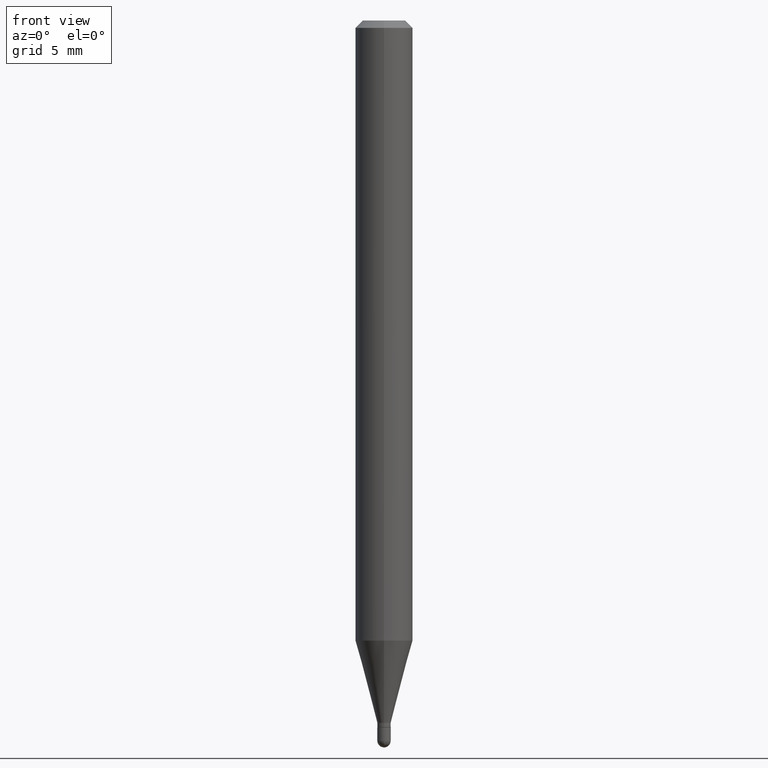
[diagram: clean part render]
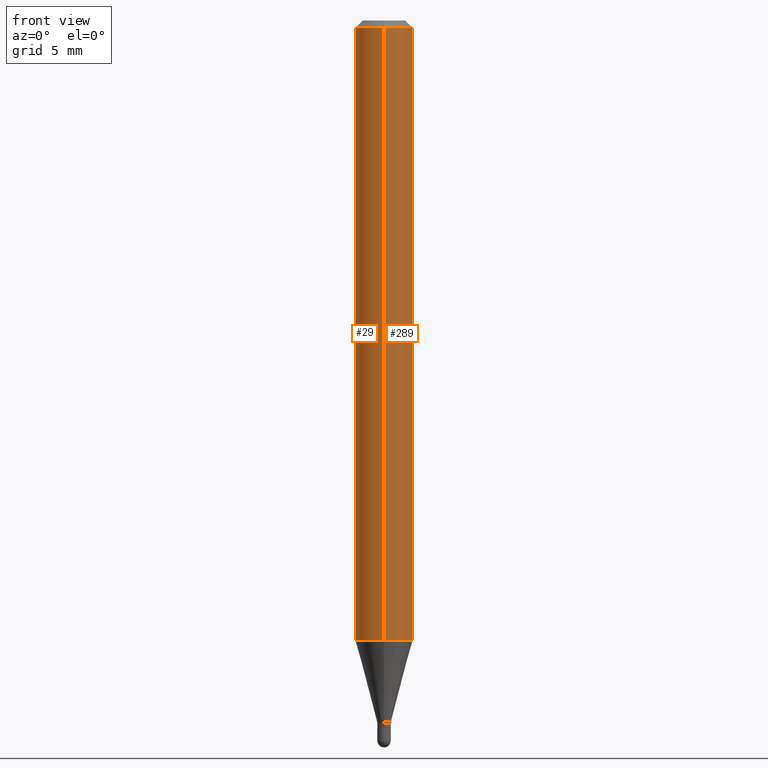
[diagram: same view with one multi-face feature highlighted, each face labeled with its STEP entity id]
A machine part, front view. The highlighted faces form ONE feature: a constant-radius fillet chain: 2 tangent blend faces with common blend radius 1.4999 mm. The faces share edges in the B-rep.
Their STEP definitions:
[1] entity #289 (Cylinder):
#12 = CYLINDRICAL_SURFACE ( 'NONE', #282, 0.05904999999999999832 ) ;
#40 = AXIS2_PLACEMENT_3D ( 'NONE', #390, #225, #226 ) ;
#51 = DIRECTION ( 'NONE',  ( -2.445422202875733242E-29, 3.491548077434707223E-15, 1.000000000000000000 ) ) ;
#62 = DIRECTION ( 'NONE',  ( -6.982962677686265922E-15, -1.000000000000000000, 3.491548077434707617E-15 ) ) ;
#67 = ORIENTED_EDGE ( 'NONE', *, *, #500, .T. ) ;
#131 = CARTESIAN_POINT ( 'NONE',  ( 4.195754854663705051E-16, 0.05904999999999994975, -0.01500000000000023016 ) ) ;
#135 = CARTESIAN_POINT ( 'NONE',  ( 0.000000000000000000, 0.000000000000000000, 0.000000000000000000 ) ) ;
#151 = DIRECTION ( 'NONE',  ( -6.982962677686265922E-15, -1.000000000000000000, 3.505890868245046092E-15 ) ) ;
#172 = VECTOR ( 'NONE', #379, 39.37007874015748143 ) ;
#207 = CARTESIAN_POINT ( 'NONE',  ( -4.123439461173428234E-16, -0.05905000000000445309, -1.276224700957508285 ) ) ;
#225 = DIRECTION ( 'NONE',  ( -2.445422202875732962E-29, 3.491548077434707223E-15, 1.000000000000000000 ) ) ;
#226 = DIRECTION ( 'NONE',  ( -6.982962677686265922E-15, -1.000000000000000000, 4.626330217890369336E-15 ) ) ;
#238 = CIRCLE ( 'NONE', #347, 0.05904999999999999832 ) ;
#254 = LINE ( 'NONE', #491, #336 ) ;
#257 = CIRCLE ( 'NONE', #40, 0.05904999999999999832 ) ;
#261 = LINE ( 'NONE', #460, #172 ) ;
#273 = ORIENTED_EDGE ( 'NONE', *, *, #432, .T. ) ;
#282 = AXIS2_PLACEMENT_3D ( 'NONE', #135, #412, #62 ) ;
#284 = FACE_OUTER_BOUND ( 'NONE', #485, .T. ) ;
#289 = ADVANCED_FACE ( 'NONE', ( #284 ), #12, .T. ) ;
#296 = VERTEX_POINT ( 'NONE', #131 ) ;
#305 = CARTESIAN_POINT ( 'NONE',  ( -4.123439461173736383E-16, -0.05905000000000005383, -0.01499999999999981730 ) ) ;
#306 = CARTESIAN_POINT ( 'NONE',  ( 3.668133304313604943E-31, -5.237322116152069561E-17, -0.01500000000000002373 ) ) ;
#334 = CARTESIAN_POINT ( 'NONE',  ( 4.195754854663701599E-16, 0.05904999999999552274, -1.276224700957508729 ) ) ;
#336 = VECTOR ( 'NONE', #51, 39.37007874015748143 ) ;
#347 = AXIS2_PLACEMENT_3D ( 'NONE', #306, #498, #151 ) ;
#348 = EDGE_CURVE ( 'NONE', #364, #411, #254, .T. ) ;
#364 = VERTEX_POINT ( 'NONE', #207 ) ;
#379 = DIRECTION ( 'NONE',  ( -2.445422202875733242E-29, 3.491548077434707223E-15, 1.000000000000000000 ) ) ;
#388 = VERTEX_POINT ( 'NONE', #334 ) ;
#390 = CARTESIAN_POINT ( 'NONE',  ( 3.120908219579933715E-29, -4.455999901002872408E-15, -1.276224700957508507 ) ) ;
#409 = ORIENTED_EDGE ( 'NONE', *, *, #462, .F. ) ;
#411 = VERTEX_POINT ( 'NONE', #305 ) ;
#412 = DIRECTION ( 'NONE',  ( -2.445422202875732962E-29, 3.491548077434707223E-15, 1.000000000000000000 ) ) ;
#432 = EDGE_CURVE ( 'NONE', #388, #296, #261, .T. ) ;
#445 = ORIENTED_EDGE ( 'NONE', *, *, #348, .F. ) ;
#460 = CARTESIAN_POINT ( 'NONE',  ( 4.195754854663390985E-16, 0.05904999999999999832, -2.061759139725194689E-16 ) ) ;
#462 = EDGE_CURVE ( 'NONE', #411, #296, #238, .T. ) ;
#485 = EDGE_LOOP ( 'NONE', ( #67, #273, #409, #445 ) ) ;
#491 = CARTESIAN_POINT ( 'NONE',  ( -4.123439461173739834E-16, -0.05904999999999999832, 2.061759139725194689E-16 ) ) ;
#498 = DIRECTION ( 'NONE',  ( -2.445422202875732962E-29, 3.491548077434707223E-15, 1.000000000000000000 ) ) ;
#500 = EDGE_CURVE ( 'NONE', #364, #388, #257, .T. ) ;
[2] entity #29 (Cylinder):
#29 = ADVANCED_FACE ( 'NONE', ( #167 ), #84, .T. ) ;
#51 = DIRECTION ( 'NONE',  ( -2.445422202875733242E-29, 3.491548077434707223E-15, 1.000000000000000000 ) ) ;
#64 = CIRCLE ( 'NONE', #339, 0.05904999999999999832 ) ;
#77 = DIRECTION ( 'NONE',  ( -6.982962677686265922E-15, -1.000000000000000000, 3.491548077434707617E-15 ) ) ;
#84 = CYLINDRICAL_SURFACE ( 'NONE', #236, 0.05904999999999999832 ) ;
#93 = CARTESIAN_POINT ( 'NONE',  ( 3.668133304313604943E-31, -5.237322116152069561E-17, -0.01500000000000002373 ) ) ;
#104 = ORIENTED_EDGE ( 'NONE', *, *, #348, .T. ) ;
#112 = DIRECTION ( 'NONE',  ( -2.445422202875732962E-29, 3.491548077434707223E-15, 1.000000000000000000 ) ) ;
#120 = ORIENTED_EDGE ( 'NONE', *, *, #432, .F. ) ;
#125 = EDGE_LOOP ( 'NONE', ( #120, #378, #104, #251 ) ) ;
#131 = CARTESIAN_POINT ( 'NONE',  ( 4.195754854663705051E-16, 0.05904999999999994975, -0.01500000000000023016 ) ) ;
#145 = DIRECTION ( 'NONE',  ( -2.445422202875732962E-29, 3.491548077434707223E-15, 1.000000000000000000 ) ) ;
#167 = FACE_OUTER_BOUND ( 'NONE', #125, .T. ) ;
#172 = VECTOR ( 'NONE', #379, 39.37007874015748143 ) ;
#207 = CARTESIAN_POINT ( 'NONE',  ( -4.123439461173428234E-16, -0.05905000000000445309, -1.276224700957508285 ) ) ;
#227 = AXIS2_PLACEMENT_3D ( 'NONE', #418, #112, #303 ) ;
#236 = AXIS2_PLACEMENT_3D ( 'NONE', #351, #424, #77 ) ;
#246 = CIRCLE ( 'NONE', #227, 0.05904999999999999832 ) ;
#251 = ORIENTED_EDGE ( 'NONE', *, *, #280, .F. ) ;
#254 = LINE ( 'NONE', #491, #336 ) ;
#261 = LINE ( 'NONE', #460, #172 ) ;
#280 = EDGE_CURVE ( 'NONE', #296, #411, #64, .T. ) ;
#296 = VERTEX_POINT ( 'NONE', #131 ) ;
#297 = DIRECTION ( 'NONE',  ( -6.982962677686265922E-15, -1.000000000000000000, 3.505890868245046092E-15 ) ) ;
#303 = DIRECTION ( 'NONE',  ( -6.982962677686265922E-15, -1.000000000000000000, 4.626330217890369336E-15 ) ) ;
#305 = CARTESIAN_POINT ( 'NONE',  ( -4.123439461173736383E-16, -0.05905000000000005383, -0.01499999999999981730 ) ) ;
#334 = CARTESIAN_POINT ( 'NONE',  ( 4.195754854663701599E-16, 0.05904999999999552274, -1.276224700957508729 ) ) ;
#336 = VECTOR ( 'NONE', #51, 39.37007874015748143 ) ;
#339 = AXIS2_PLACEMENT_3D ( 'NONE', #93, #145, #297 ) ;
#348 = EDGE_CURVE ( 'NONE', #364, #411, #254, .T. ) ;
#351 = CARTESIAN_POINT ( 'NONE',  ( 0.000000000000000000, 0.000000000000000000, 0.000000000000000000 ) ) ;
#364 = VERTEX_POINT ( 'NONE', #207 ) ;
#378 = ORIENTED_EDGE ( 'NONE', *, *, #446, .T. ) ;
#379 = DIRECTION ( 'NONE',  ( -2.445422202875733242E-29, 3.491548077434707223E-15, 1.000000000000000000 ) ) ;
#388 = VERTEX_POINT ( 'NONE', #334 ) ;
#411 = VERTEX_POINT ( 'NONE', #305 ) ;
#418 = CARTESIAN_POINT ( 'NONE',  ( 3.120908219579933715E-29, -4.455999901002872408E-15, -1.276224700957508507 ) ) ;
#424 = DIRECTION ( 'NONE',  ( -2.445422202875732962E-29, 3.491548077434707223E-15, 1.000000000000000000 ) ) ;
#432 = EDGE_CURVE ( 'NONE', #388, #296, #261, .T. ) ;
#446 = EDGE_CURVE ( 'NONE', #388, #364, #246, .T. ) ;
#460 = CARTESIAN_POINT ( 'NONE',  ( 4.195754854663390985E-16, 0.05904999999999999832, -2.061759139725194689E-16 ) ) ;
#491 = CARTESIAN_POINT ( 'NONE',  ( -4.123439461173739834E-16, -0.05904999999999999832, 2.061759139725194689E-16 ) ) ;